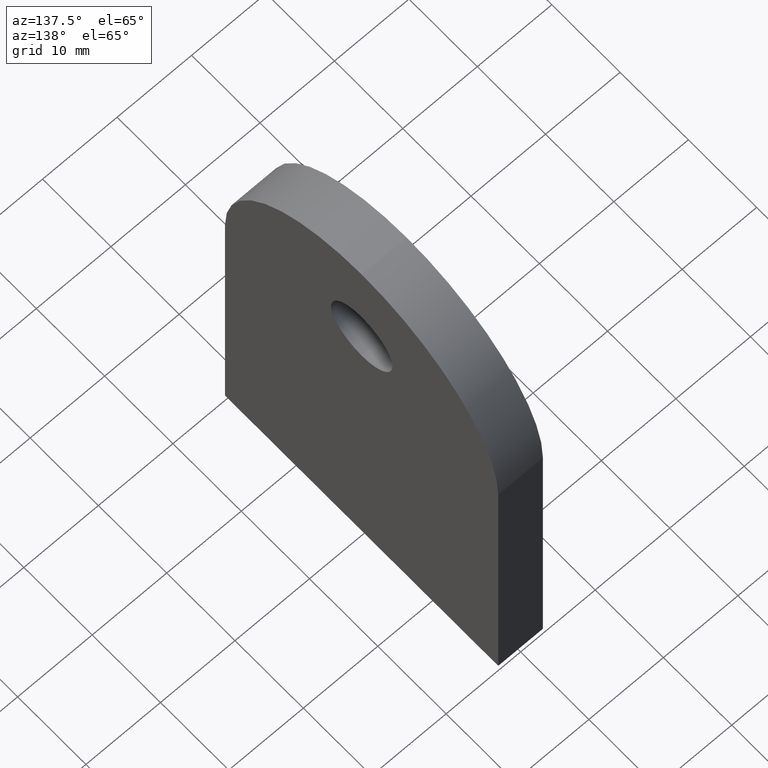
[diagram: clean part render]
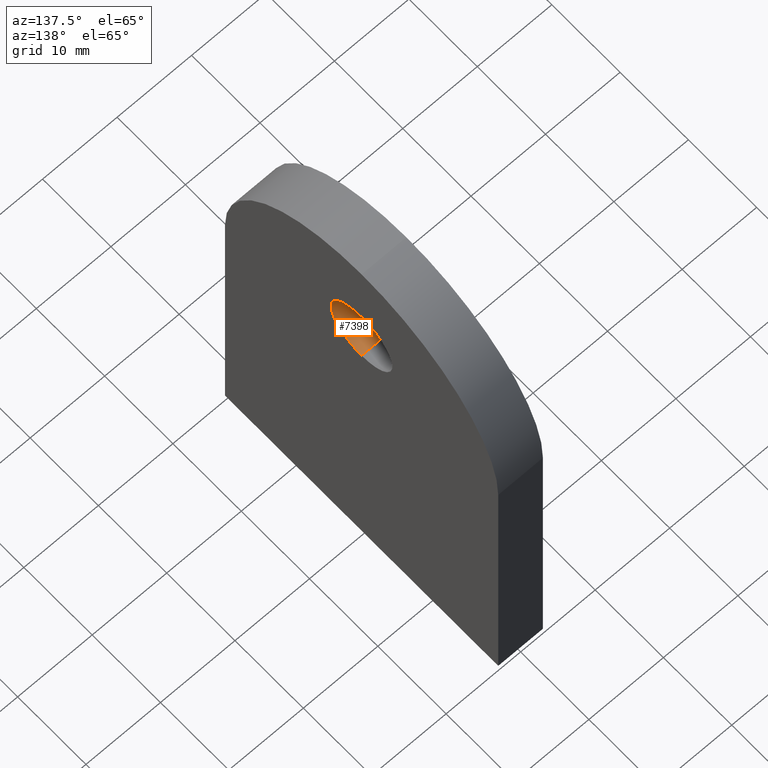
[diagram: same view with one face highlighted and labeled with its STEP entity id]
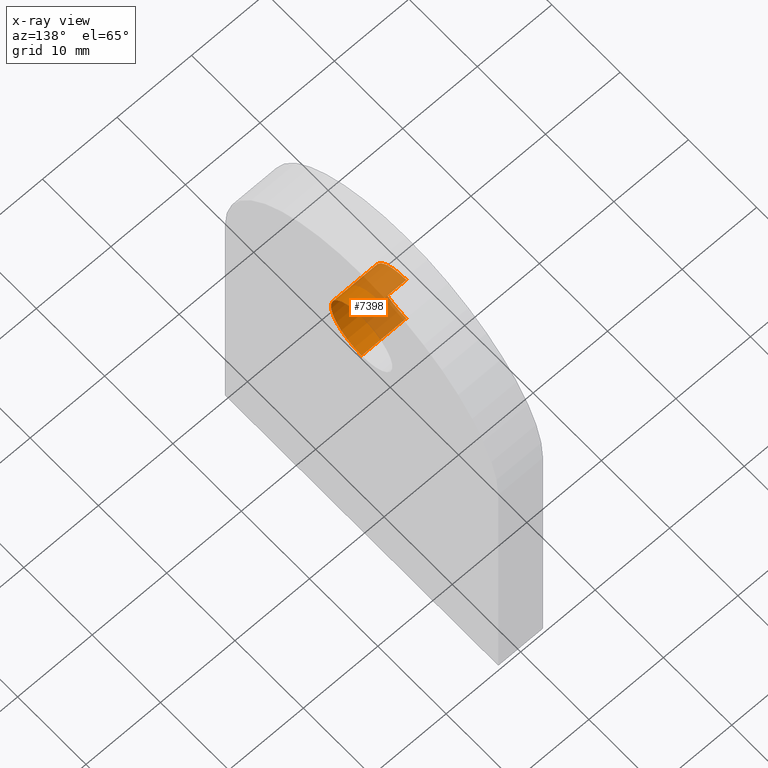
[diagram: x-ray of the same camera — body ghosted, the highlighted face saturated]
A machine part, auxiliary view. The second image highlights one B-rep face of the part: STEP entity #7398.
The next image is the same camera in x-ray: the body ghosted, the highlighted face saturated — about 50% of this face is hidden behind the body in this view.
In plain terms, the highlighted cylindrical surface (partial cylindrical patch) has radius 4.5 mm, axis along (1, -0, -0).
Its self-contained STEP definition (entity closure, byte-faithful):
#93 = EDGE_CURVE ( 'NONE', #5138, #313, #6539, .T. ) ;
#144 = AXIS2_PLACEMENT_3D ( 'NONE', #9172, #8264, #5839 ) ;
#278 = VECTOR ( 'NONE', #9353, 1000.000000000000000 ) ;
#313 = VERTEX_POINT ( 'NONE', #3109 ) ;
#381 = EDGE_CURVE ( 'NONE', #5138, #8883, #1250, .T. ) ;
#706 = DIRECTION ( 'NONE',  ( 0.0000000000000000000, 0.0000000000000000000, -1.000000000000000000 ) ) ;
#1003 = CARTESIAN_POINT ( 'NONE',  ( -3.000000000000000000, 0.0000000000000000000, 40.99999999999998600 ) ) ;
#1095 = ORIENTED_EDGE ( 'NONE', *, *, #381, .F. ) ;
#1250 = CIRCLE ( 'NONE', #5175, 4.500000000000003600 ) ;
#1391 = CARTESIAN_POINT ( 'NONE',  ( -3.000000000000000000, 0.0000000000000000000, 45.49999999999999300 ) ) ;
#1694 = CARTESIAN_POINT ( 'NONE',  ( 3.000000000000000000, 0.0000000000000000000, 40.99999999999998600 ) ) ;
#1845 = CARTESIAN_POINT ( 'NONE',  ( -3.000000000000000000, 5.510910596163095500E-016, 49.99999999999999300 ) ) ;
#1978 = ORIENTED_EDGE ( 'NONE', *, *, #93, .T. ) ;
#2067 = FACE_OUTER_BOUND ( 'NONE', #4507, .T. ) ;
#2129 = CIRCLE ( 'NONE', #144, 4.500000000000003600 ) ;
#2257 = ORIENTED_EDGE ( 'NONE', *, *, #3450, .F. ) ;
#2372 = EDGE_CURVE ( 'NONE', #313, #4111, #2129, .T. ) ;
#3098 = DIRECTION ( 'NONE',  ( 1.000000000000000000, -0.0000000000000000000, -0.0000000000000000000 ) ) ;
#3109 = CARTESIAN_POINT ( 'NONE',  ( 3.000000000000000000, 5.510910596163096500E-016, 49.99999999999999300 ) ) ;
#3450 = EDGE_CURVE ( 'NONE', #8883, #4111, #4790, .T. ) ;
#3594 = DIRECTION ( 'NONE',  ( 1.000000000000000000, -0.0000000000000000000, -0.0000000000000000000 ) ) ;
#3772 = DIRECTION ( 'NONE',  ( 0.0000000000000000000, 0.0000000000000000000, -1.000000000000000000 ) ) ;
#4111 = VERTEX_POINT ( 'NONE', #1694 ) ;
#4507 = EDGE_LOOP ( 'NONE', ( #1095, #1978, #10642, #2257 ) ) ;
#4790 = LINE ( 'NONE', #1003, #278 ) ;
#5138 = VERTEX_POINT ( 'NONE', #7353 ) ;
#5175 = AXIS2_PLACEMENT_3D ( 'NONE', #5884, #9950, #706 ) ;
#5396 = CARTESIAN_POINT ( 'NONE',  ( -3.000000000000000000, 0.0000000000000000000, 40.99999999999998600 ) ) ;
#5839 = DIRECTION ( 'NONE',  ( 0.0000000000000000000, 0.0000000000000000000, -1.000000000000000000 ) ) ;
#5884 = CARTESIAN_POINT ( 'NONE',  ( -3.000000000000000000, 0.0000000000000000000, 45.49999999999999300 ) ) ;
#6539 = LINE ( 'NONE', #1845, #6800 ) ;
#6543 = AXIS2_PLACEMENT_3D ( 'NONE', #1391, #3098, #3772 ) ;
#6800 = VECTOR ( 'NONE', #3594, 1000.000000000000000 ) ;
#7353 = CARTESIAN_POINT ( 'NONE',  ( -3.000000000000000000, 5.510910596163096500E-016, 49.99999999999999300 ) ) ;
#7398 = ADVANCED_FACE ( 'NONE', ( #2067 ), #9053, .F. ) ;
#8264 = DIRECTION ( 'NONE',  ( 1.000000000000000000, 0.0000000000000000000, 0.0000000000000000000 ) ) ;
#8883 = VERTEX_POINT ( 'NONE', #5396 ) ;
#9053 = CYLINDRICAL_SURFACE ( 'NONE', #6543, 4.500000000000003600 ) ;
#9172 = CARTESIAN_POINT ( 'NONE',  ( 3.000000000000000000, 0.0000000000000000000, 45.49999999999999300 ) ) ;
#9353 = DIRECTION ( 'NONE',  ( 1.000000000000000000, -0.0000000000000000000, -0.0000000000000000000 ) ) ;
#9950 = DIRECTION ( 'NONE',  ( 1.000000000000000000, 0.0000000000000000000, 0.0000000000000000000 ) ) ;
#10642 = ORIENTED_EDGE ( 'NONE', *, *, #2372, .T. ) ;